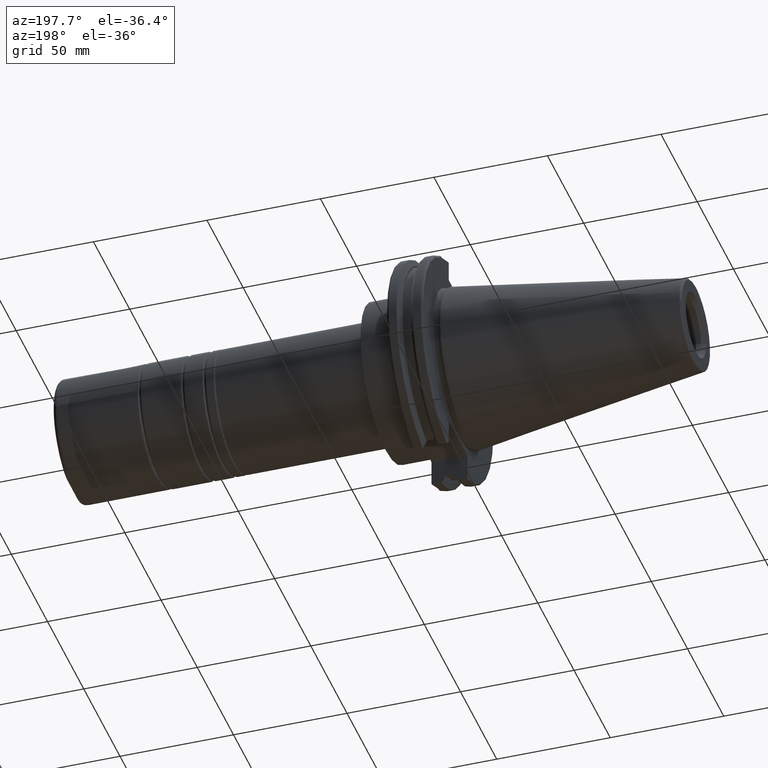
[diagram: clean part render]
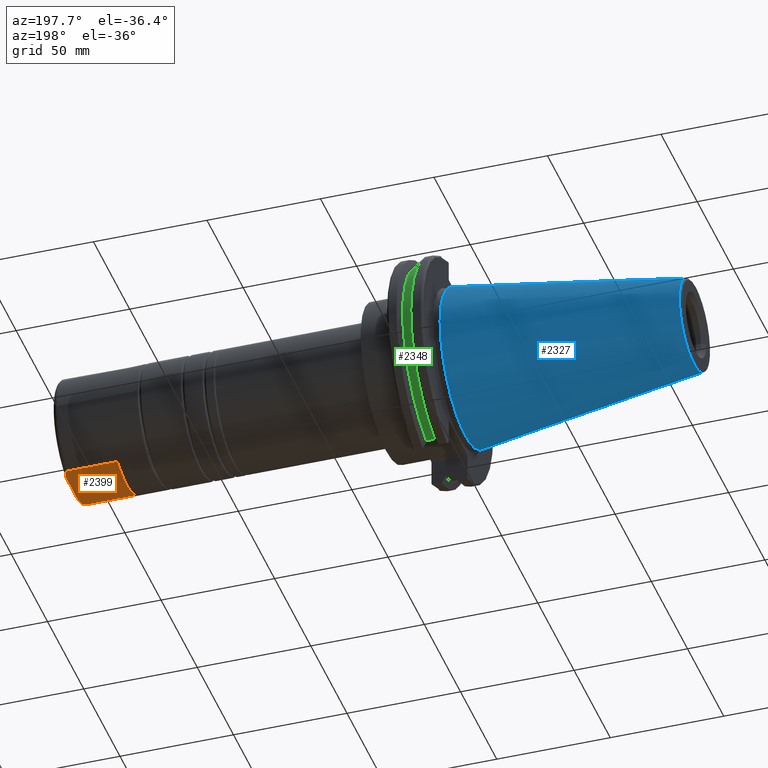
[diagram: same view with three faces highlighted in distinct colors, each labeled with its STEP entity id]
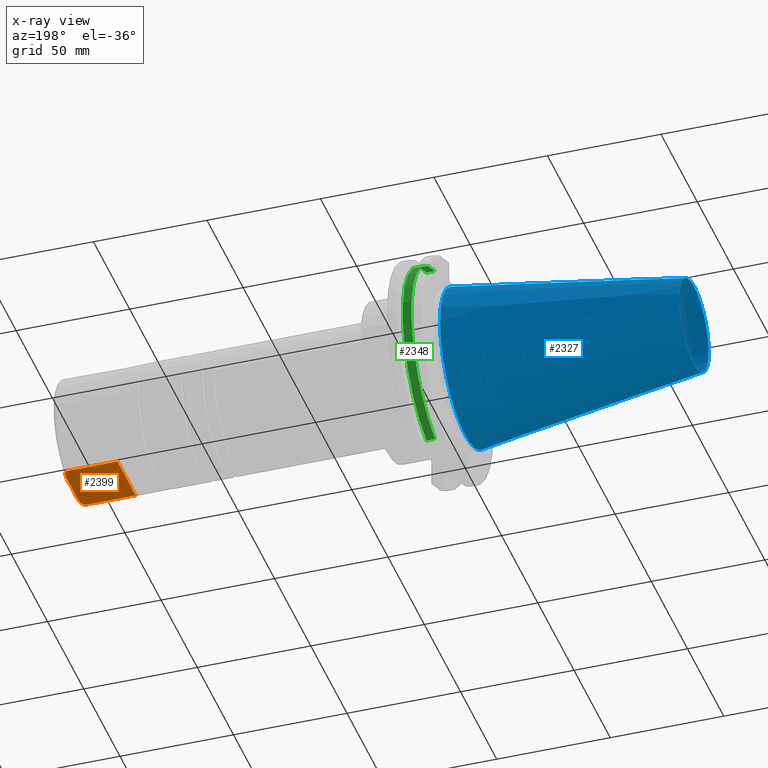
[diagram: x-ray of the same camera — body ghosted, the three highlighted faces saturated]
A machine part, auxiliary view with three faces highlighted in distinct colors.
The next image is the same camera in x-ray (body ghosted, the three faces saturated) — at least one of them is partly hidden behind the body in this view.
Their STEP definitions:

[orange] entity #2399 — the highlighted planar face has unit normal (0, 0, 1).
#706=B_SPLINE_CURVE_WITH_KNOTS('',3,(#4673,#4674,#4675,#4676,#4677,#4678,
#4679,#4680,#4681,#4682,#4683,#4684),.UNSPECIFIED.,.F.,.F.,(4,2,2,2,2,4),
(3.20358217122752,3.4900197150711,3.63087192895303,3.71390972727886,3.74267937231087,
3.76825272640647),.UNSPECIFIED.);
#707=B_SPLINE_CURVE_WITH_KNOTS('',3,(#4687,#4688,#4689,#4690,#4691,#4692,
#4693,#4694,#4695,#4696,#4697,#4698),.UNSPECIFIED.,.F.,.F.,(4,2,2,2,2,4),
(1.25608424213549,1.28165759623108,1.3104272412631,1.39346503958893,1.53431725347086,
1.82075479731444),.UNSPECIFIED.);
#843=FACE_OUTER_BOUND('',#972,.T.);
#972=EDGE_LOOP('',(#2209,#2210,#2211,#2212,#2213,#2214));
#1107=LINE('',#4664,#1239);
#1108=LINE('',#4668,#1240);
#1109=LINE('',#4701,#1241);
#1110=LINE('',#4702,#1242);
#1239=VECTOR('',#3554,10.);
#1240=VECTOR('',#3557,10.);
#1241=VECTOR('',#3570,10.);
#1242=VECTOR('',#3571,10.);
#1415=VERTEX_POINT('',#4661);
#1416=VERTEX_POINT('',#4663);
#1417=VERTEX_POINT('',#4665);
#1418=VERTEX_POINT('',#4667);
#1419=VERTEX_POINT('',#4671);
#1420=VERTEX_POINT('',#4686);
#1679=EDGE_CURVE('',#1415,#1416,#1107,.T.);
#1681=EDGE_CURVE('',#1417,#1418,#1108,.T.);
#1684=EDGE_CURVE('',#1419,#1415,#706,.T.);
#1685=EDGE_CURVE('',#1418,#1420,#707,.T.);
#1687=EDGE_CURVE('',#1420,#1419,#1109,.T.);
#1688=EDGE_CURVE('',#1417,#1416,#1110,.T.);
#2209=ORIENTED_EDGE('',*,*,#1684,.F.);
#2210=ORIENTED_EDGE('',*,*,#1687,.F.);
#2211=ORIENTED_EDGE('',*,*,#1685,.F.);
#2212=ORIENTED_EDGE('',*,*,#1681,.F.);
#2213=ORIENTED_EDGE('',*,*,#1688,.T.);
#2214=ORIENTED_EDGE('',*,*,#1679,.F.);
#2288=PLANE('',#2863);
#2399=ADVANCED_FACE('',(#843),#2288,.F.);
#2863=AXIS2_PLACEMENT_3D('',#4700,#3568,#3569);
#3554=DIRECTION('',(-1.,0.,0.));
#3557=DIRECTION('',(1.,0.,0.));
#3568=DIRECTION('center_axis',(0.,0.,-1.));
#3569=DIRECTION('ref_axis',(0.,-1.,0.));
#3570=DIRECTION('',(0.,-1.,0.));
#3571=DIRECTION('',(0.,-1.,0.));
#4661=CARTESIAN_POINT('',(36.1,-12.5666411085063,23.8125));
#4663=CARTESIAN_POINT('',(14.1,-12.5666411085063,23.8125));
#4664=CARTESIAN_POINT('',(19.05,-12.5666411085063,23.8125));
#4665=CARTESIAN_POINT('',(14.1,12.5666411085063,23.8125));
#4667=CARTESIAN_POINT('',(36.1,12.5666411085063,23.8125));
#4668=CARTESIAN_POINT('',(19.05,12.5666411085063,23.8125));
#4671=CARTESIAN_POINT('',(38.1,-7.36345494655871,23.8125));
#4673=CARTESIAN_POINT('Ctrl Pts',(38.1,-7.36345494655871,23.8125));
#4674=CARTESIAN_POINT('Ctrl Pts',(38.1,-8.31824675937064,23.8125));
#4675=CARTESIAN_POINT('Ctrl Pts',(38.0292139688024,-9.4618082147186,23.8125));
#4676=CARTESIAN_POINT('Ctrl Pts',(37.6860463190675,-10.8441483153086,23.8125));
#4677=CARTESIAN_POINT('Ctrl Pts',(37.4981215411357,-11.3752921906628,23.8125));
#4678=CARTESIAN_POINT('Ctrl Pts',(37.0989458778995,-12.0058653748513,23.8125));
#4679=CARTESIAN_POINT('Ctrl Pts',(36.8823445656855,-12.257675396018,23.8125));
#4680=CARTESIAN_POINT('Ctrl Pts',(36.5648859875272,-12.4529162442614,23.8125));
#4681=CARTESIAN_POINT('Ctrl Pts',(36.4603761581291,-12.5010906686324,23.8125));
#4682=CARTESIAN_POINT('Ctrl Pts',(36.2864353136,-12.5516622887577,23.8125));
#4683=CARTESIAN_POINT('Ctrl Pts',(36.185244513652,-12.5666411085063,23.8125));
#4684=CARTESIAN_POINT('Ctrl Pts',(36.1,-12.5666411085063,23.8125));
#4686=CARTESIAN_POINT('',(38.1,7.36345494655871,23.8125));
#4687=CARTESIAN_POINT('Ctrl Pts',(36.1,12.5666411085063,23.8125));
#4688=CARTESIAN_POINT('Ctrl Pts',(36.185244513652,12.5666411085063,23.8125));
#4689=CARTESIAN_POINT('Ctrl Pts',(36.2864353136,12.5516622887577,23.8125));
#4690=CARTESIAN_POINT('Ctrl Pts',(36.4603761581291,12.5010906686324,23.8125));
#4691=CARTESIAN_POINT('Ctrl Pts',(36.5648859875272,12.4529162442614,23.8125));
#4692=CARTESIAN_POINT('Ctrl Pts',(36.8823445656855,12.257675396018,23.8125));
#4693=CARTESIAN_POINT('Ctrl Pts',(37.0989458778995,12.0058653748513,23.8125));
#4694=CARTESIAN_POINT('Ctrl Pts',(37.4981215411357,11.3752921906628,23.8125));
#4695=CARTESIAN_POINT('Ctrl Pts',(37.6860463190675,10.8441483153086,23.8125));
#4696=CARTESIAN_POINT('Ctrl Pts',(38.0292139688024,9.4618082147186,23.8125));
#4697=CARTESIAN_POINT('Ctrl Pts',(38.1,8.31824675937064,23.8125));
#4698=CARTESIAN_POINT('Ctrl Pts',(38.1,7.36345494655871,23.8125));
#4700=CARTESIAN_POINT('Origin',(38.1,17.5,23.8125));
#4701=CARTESIAN_POINT('',(38.1,8.75,23.8125));
#4702=CARTESIAN_POINT('',(14.1,-17.5,23.8125));

[blue] entity #2327 — the highlighted conical surface has half-angle 8.297 deg.
#548=CONICAL_SURFACE('',#2672,27.5166666666666,0.14481249823894);
#603=CIRCLE('',#2666,20.233121911427);
#604=CIRCLE('',#2667,20.233121911427);
#608=CIRCLE('',#2673,34.925);
#771=FACE_OUTER_BOUND('',#891,.T.);
#891=EDGE_LOOP('',(#1878,#1879,#1880,#1881,#1882));
#1039=LINE('',#4080,#1171);
#1171=VECTOR('',#3120,27.5166666666666);
#1331=VERTEX_POINT('',#4067);
#1332=VERTEX_POINT('',#4068);
#1335=VERTEX_POINT('',#4078);
#1538=EDGE_CURVE('',#1331,#1332,#603,.T.);
#1539=EDGE_CURVE('',#1332,#1331,#604,.T.);
#1543=EDGE_CURVE('',#1335,#1335,#608,.T.);
#1544=EDGE_CURVE('',#1335,#1332,#1039,.T.);
#1878=ORIENTED_EDGE('',*,*,#1543,.F.);
#1879=ORIENTED_EDGE('',*,*,#1544,.T.);
#1880=ORIENTED_EDGE('',*,*,#1538,.F.);
#1881=ORIENTED_EDGE('',*,*,#1539,.F.);
#1882=ORIENTED_EDGE('',*,*,#1544,.F.);
#2327=ADVANCED_FACE('',(#771),#548,.T.);
#2666=AXIS2_PLACEMENT_3D('',#4069,#3104,#3105);
#2667=AXIS2_PLACEMENT_3D('',#4070,#3106,#3107);
#2672=AXIS2_PLACEMENT_3D('',#4077,#3116,#3117);
#2673=AXIS2_PLACEMENT_3D('',#4079,#3118,#3119);
#3104=DIRECTION('center_axis',(-1.,0.,0.));
#3105=DIRECTION('ref_axis',(0.,-1.,3.06161699786838E-17));
#3106=DIRECTION('center_axis',(-1.,0.,0.));
#3107=DIRECTION('ref_axis',(0.,-1.,3.06161699786838E-17));
#3116=DIRECTION('center_axis',(1.,0.,0.));
#3117=DIRECTION('ref_axis',(0.,1.,0.));
#3118=DIRECTION('center_axis',(1.,0.,0.));
#3119=DIRECTION('ref_axis',(0.,0.,-1.));
#3120=DIRECTION('',(-0.989532981063281,0.144306893071729,1.76724974695192E-17));
#4067=CARTESIAN_POINT('',(-100.744306893072,-2.47784279855872E-15,20.233121911427));
#4068=CARTESIAN_POINT('',(-100.744306893072,-20.233121911427,-2.47784279855872E-15));
#4069=CARTESIAN_POINT('Origin',(-100.744306893072,0.,-3.09730349819841E-15));
#4070=CARTESIAN_POINT('Origin',(-100.744306893072,0.,-3.09730349819841E-15));
#4077=CARTESIAN_POINT('Origin',(-50.8,0.,0.));
#4078=CARTESIAN_POINT('',(-8.88178419700125E-15,-34.925,-4.27707894602213E-15));
#4079=CARTESIAN_POINT('Origin',(0.,0.,0.));
#4080=CARTESIAN_POINT('',(-50.8,-27.5166666666666,-3.3698197756538E-15));

[green] entity #2348 — the highlighted cylindrical surface (partial cylindrical patch) has radius 45.6435 mm, axis along (1, 0, 0).
#617=CIRCLE('',#2701,45.6435);
#619=CIRCLE('',#2705,45.6435);
#722=CYLINDRICAL_SURFACE('',#2704,45.6435);
#792=FACE_OUTER_BOUND('',#912,.T.);
#912=EDGE_LOOP('',(#1976,#1977,#1978,#1979));
#1013=LINE('',#3887,#1145);
#1047=LINE('',#4101,#1179);
#1145=VECTOR('',#3046,10.);
#1179=VECTOR('',#3140,10.);
#1293=VERTEX_POINT('',#3884);
#1294=VERTEX_POINT('',#3886);
#1338=VERTEX_POINT('',#4098);
#1339=VERTEX_POINT('',#4100);
#1488=EDGE_CURVE('',#1294,#1293,#1013,.T.);
#1553=EDGE_CURVE('',#1339,#1338,#1047,.T.);
#1575=EDGE_CURVE('',#1293,#1339,#617,.T.);
#1577=EDGE_CURVE('',#1294,#1338,#619,.T.);
#1976=ORIENTED_EDGE('',*,*,#1488,.T.);
#1977=ORIENTED_EDGE('',*,*,#1575,.T.);
#1978=ORIENTED_EDGE('',*,*,#1553,.T.);
#1979=ORIENTED_EDGE('',*,*,#1577,.F.);
#2348=ADVANCED_FACE('',(#792),#722,.T.);
#2701=AXIS2_PLACEMENT_3D('',#4155,#3191,#3192);
#2704=AXIS2_PLACEMENT_3D('',#4158,#3197,#3198);
#2705=AXIS2_PLACEMENT_3D('',#4159,#3199,#3200);
#3046=DIRECTION('',(-1.,0.,0.));
#3140=DIRECTION('',(1.,0.,0.));
#3191=DIRECTION('center_axis',(1.,0.,0.));
#3192=DIRECTION('ref_axis',(0.,0.,-1.));
#3197=DIRECTION('center_axis',(1.,0.,0.));
#3198=DIRECTION('ref_axis',(0.,1.,0.));
#3199=DIRECTION('center_axis',(1.,0.,0.));
#3200=DIRECTION('ref_axis',(0.,0.,-1.));
#3884=CARTESIAN_POINT('',(9.2123,12.95,-43.7678716897452));
#3886=CARTESIAN_POINT('',(13.0423,12.95,-43.7678716897452));
#3887=CARTESIAN_POINT('',(11.1273,12.95,-43.7678716897452));
#4098=CARTESIAN_POINT('',(13.0423,12.95,43.7678716897452));
#4100=CARTESIAN_POINT('',(9.2123,12.95,43.7678716897452));
#4101=CARTESIAN_POINT('',(11.1273,12.95,43.7678716897452));
#4155=CARTESIAN_POINT('Origin',(9.2123,0.,0.));
#4158=CARTESIAN_POINT('Origin',(11.1273,0.,0.));
#4159=CARTESIAN_POINT('Origin',(13.0423,0.,0.));